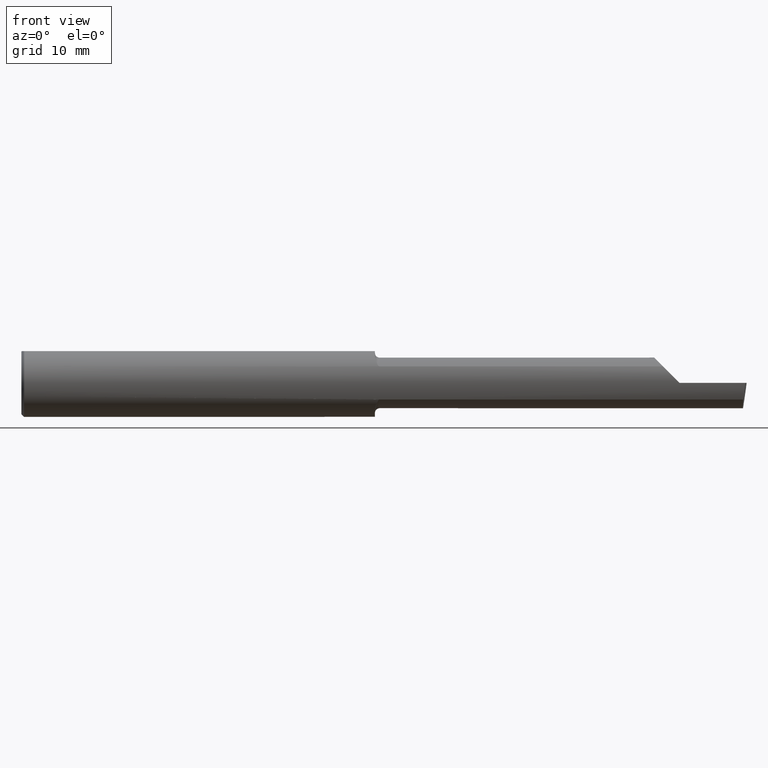
[diagram: clean part render]
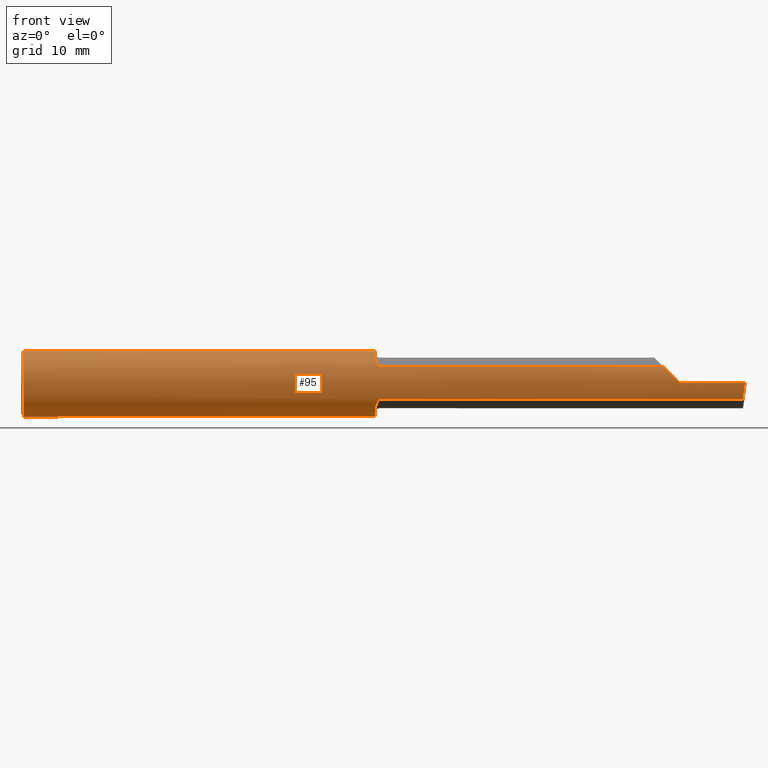
[diagram: same view with one face highlighted and labeled with its STEP entity id]
A machine part, front view. The second image highlights one B-rep face of the part: STEP entity #95.
In plain terms, the highlighted cylindrical surface (edge-blend (fillet) strip) has radius 4.7587 mm, axis along (-1, -0, -0).
Its self-contained STEP definition (entity closure, byte-faithful):
#14 = LINE ( 'NONE', #566, #332 ) ;
#16 = CARTESIAN_POINT ( 'NONE',  ( 1.565719721143680372E-32, -0.1873499999999999610, 1.790477306702064235E-16 ) ) ;
#18 = CIRCLE ( 'NONE', #256, 0.1873499999999999888 ) ;
#22 = CARTESIAN_POINT ( 'NONE',  ( 0.01499999999999999424, 0.000000000000000000, 0.000000000000000000 ) ) ;
#24 = ORIENTED_EDGE ( 'NONE', *, *, #160, .T. ) ;
#25 = CARTESIAN_POINT ( 'NONE',  ( 1.967975941902152970, -0.1612443294219081946, -0.09540922431498190248 ) ) ;
#27 = B_SPLINE_CURVE_WITH_KNOTS ( 'NONE', 3,
 ( #98, #536, #37, #139, #340, #94, #381, #473, #633, #250, #293, #29, #148, #576 ),
 .UNSPECIFIED., .F., .F.,
 ( 4, 2, 2, 2, 2, 2, 4 ),
 ( 0.0002471551878304244871, 0.0008987327522055639636, 0.001550310316580703549, 0.002201887880955843025, 0.002527676663143411679, 0.002690571054237196440, 0.002853465445330980767 ),
 .UNSPECIFIED. ) ;
#28 = EDGE_CURVE ( 'NONE', #187, #599, #228, .T. ) ;
#29 = CARTESIAN_POINT ( 'NONE',  ( 1.970903862568969656, -0.1628809688430622182, 0.09258733509388469840 ) ) ;
#31 = CARTESIAN_POINT ( 'NONE',  ( 0.01499999999999999424, 0.000000000000000000, -0.1873499999999999888 ) ) ;
#33 = LINE ( 'NONE', #88, #278 ) ;
#36 = EDGE_CURVE ( 'NONE', #453, #77, #274, .T. ) ;
#37 = CARTESIAN_POINT ( 'NONE',  ( 1.950383728133729955, -0.1114837668894153588, 0.1508119329971095157 ) ) ;
#38 = CARTESIAN_POINT ( 'NONE',  ( 3.984117089522338340, -0.1792580844883770730, -0.06324101202936152633 ) ) ;
#51 = AXIS2_PLACEMENT_3D ( 'NONE', #220, #615, #408 ) ;
#62 = DIRECTION ( 'NONE',  ( 0.000000000000000000, 1.000000000000000000, 0.000000000000000000 ) ) ;
#63 =( BOUNDED_CURVE ( )  B_SPLINE_CURVE ( 3, ( #99, #38, #632, #203 ),
 .UNSPECIFIED., .F., .T. ) 
 B_SPLINE_CURVE_WITH_KNOTS ( ( 4, 4 ),
 ( 0.8516985021657640376, 1.360746882515199152 ),
 .UNSPECIFIED. ) 
 CURVE ( )  GEOMETRIC_REPRESENTATION_ITEM ( )  RATIONAL_B_SPLINE_CURVE ( ( 1.000000000000000000, 0.9785221379938656705, 0.9785221379938656705, 1.000000000000000000 ) ) 
 REPRESENTATION_ITEM ( '' )  );
#69 = DIRECTION ( 'NONE',  ( 0.000000000000000000, 0.000000000000000000, 1.000000000000000000 ) ) ;
#77 = VERTEX_POINT ( 'NONE', #456 ) ;
#82 = EDGE_CURVE ( 'NONE', #187, #125, #215, .T. ) ;
#85 = DIRECTION ( 'NONE',  ( 1.000000000000000000, 0.000000000000000000, 0.000000000000000000 ) ) ;
#87 = CARTESIAN_POINT ( 'NONE',  ( 2.817500000000000338, -0.1635956445993029806, -0.09130436773856190347 ) ) ;
#88 = CARTESIAN_POINT ( 'NONE',  ( 0.000000000000000000, -0.06597272163553657975, 0.1753499999999999781 ) ) ;
#90 = CARTESIAN_POINT ( 'NONE',  ( 1.956145841430604770, -0.1426194794824340584, -0.1217813759115466132 ) ) ;
#91 = AXIS2_PLACEMENT_3D ( 'NONE', #638, #429, #634 ) ;
#94 = CARTESIAN_POINT ( 'NONE',  ( 1.956142321956750418, -0.1426151417460931881, 0.1217894822571231050 ) ) ;
#95 = ADVANCED_FACE ( 'NONE', ( #464 ), #183, .T. ) ;
#97 = CARTESIAN_POINT ( 'NONE',  ( 3.629999999999999893, -0.1873499999999999888, -1.383850883036508279E-16 ) ) ;
#98 = CARTESIAN_POINT ( 'NONE',  ( 1.950000000000000178, -0.09715400696864148755, 0.1601908905959922580 ) ) ;
#99 = CARTESIAN_POINT ( 'NONE',  ( 3.981080296960509024, -0.1635956445993029806, -0.09130436773856190347 ) ) ;
#124 = DIRECTION ( 'NONE',  ( -1.000000000000000000, -0.000000000000000000, -0.000000000000000000 ) ) ;
#125 = VERTEX_POINT ( 'NONE', #31 ) ;
#134 = EDGE_CURVE ( 'NONE', #339, #450, #33, .T. ) ;
#138 = CARTESIAN_POINT ( 'NONE',  ( 1.951903396790308109, -0.1248165254919064160, -0.1399798634953944299 ) ) ;
#139 = CARTESIAN_POINT ( 'NONE',  ( 1.951891754936545098, -0.1247344934163569508, 0.1400506178720500317 ) ) ;
#144 = VECTOR ( 'NONE', #468, 39.37007874015748143 ) ;
#148 = CARTESIAN_POINT ( 'NONE',  ( 1.972800914500665304, -0.1635956445997551467, 0.09130436773775216230 ) ) ;
#152 = CARTESIAN_POINT ( 'NONE',  ( 0.01499999999999999424, 0.06597272163553663527, 0.1753499999999999781 ) ) ;
#153 = AXIS2_PLACEMENT_3D ( 'NONE', #22, #124, #613 ) ;
#155 = ORIENTED_EDGE ( 'NONE', *, *, #36, .T. ) ;
#160 = EDGE_CURVE ( 'NONE', #218, #453, #63, .T. ) ;
#170 = CARTESIAN_POINT ( 'NONE',  ( 1.963743174082349885, -0.1572750258711010096, -0.1018777902325210261 ) ) ;
#172 = EDGE_CURVE ( 'NONE', #77, #418, #248, .T. ) ;
#178 = ORIENTED_EDGE ( 'NONE', *, *, #465, .F. ) ;
#183 = CYLINDRICAL_SURFACE ( 'NONE', #559, 0.1873499999999999888 ) ;
#184 = ORIENTED_EDGE ( 'NONE', *, *, #28, .T. ) ;
#187 = VERTEX_POINT ( 'NONE', #152 ) ;
#195 = CARTESIAN_POINT ( 'NONE',  ( 1.953041727949557993, -0.1311116946065054856, -0.1340922927843368473 ) ) ;
#199 = CARTESIAN_POINT ( 'NONE',  ( 1.950000000000000178, -0.09715400696864148755, -0.1601908905959922580 ) ) ;
#203 = CARTESIAN_POINT ( 'NONE',  ( 3.991672876940992154, -0.1873499999999999888, -1.700101953615524951E-16 ) ) ;
#211 = EDGE_LOOP ( 'NONE', ( #621, #24, #155, #378, #178, #500, #624, #272, #477, #617, #184, #546, #364 ) ) ;
#215 = CIRCLE ( 'NONE', #51, 0.1873499999999999888 ) ;
#218 = VERTEX_POINT ( 'NONE', #302 ) ;
#220 = CARTESIAN_POINT ( 'NONE',  ( 0.01499999999999999424, 0.000000000000000000, 0.000000000000000000 ) ) ;
#228 = LINE ( 'NONE', #521, #331 ) ;
#229 = EDGE_CURVE ( 'NONE', #339, #405, #611, .T. ) ;
#231 = CARTESIAN_POINT ( 'NONE',  ( 3.538695632261437130, -0.1635956445993027863, 0.09130436773856213939 ) ) ;
#233 = VERTEX_POINT ( 'NONE', #350 ) ;
#234 = CARTESIAN_POINT ( 'NONE',  ( 1.950000000000000178, -0.09715400696864148755, 0.1601908905959922580 ) ) ;
#238 = CARTESIAN_POINT ( 'NONE',  ( 1.950000000000000178, 0.06597272163553663527, 0.1753499999999999781 ) ) ;
#248 =( BOUNDED_CURVE ( )  B_SPLINE_CURVE ( 3, ( #97, #423, #384, #581 ),
 .UNSPECIFIED., .F., .T. ) 
 B_SPLINE_CURVE_WITH_KNOTS ( ( 4, 4 ),
 ( 4.712388980384689674, 5.221437360734126898 ),
 .UNSPECIFIED. ) 
 CURVE ( )  GEOMETRIC_REPRESENTATION_ITEM ( )  RATIONAL_B_SPLINE_CURVE ( ( 1.000000000000000000, 0.9785221379938655595, 0.9785221379938655595, 1.000000000000000000 ) ) 
 REPRESENTATION_ITEM ( '' )  );
#250 = CARTESIAN_POINT ( 'NONE',  ( 1.966855994529493667, -0.1603175578889969033, 0.09696363432848439934 ) ) ;
#256 = AXIS2_PLACEMENT_3D ( 'NONE', #320, #504, #62 ) ;
#272 = ORIENTED_EDGE ( 'NONE', *, *, #134, .T. ) ;
#274 = LINE ( 'NONE', #16, #144 ) ;
#277 = B_SPLINE_CURVE_WITH_KNOTS ( 'NONE', 3,
 ( #375, #508, #470, #25, #420, #170, #296, #424, #90, #195, #138, #526, #478, #199 ),
 .UNSPECIFIED., .F., .F.,
 ( 4, 2, 2, 2, 2, 2, 4 ),
 ( 1.968340875534775316E-07, 0.0001667114270246280842, 0.0003332260199617026984, 0.0006662552058358508968, 0.001332313577584142523, 0.001998371949332434366, 0.002664430321080726426 ),
 .UNSPECIFIED. ) ;
#278 = VECTOR ( 'NONE', #341, 39.37007874015748143 ) ;
#293 = CARTESIAN_POINT ( 'NONE',  ( 1.968001859868116821, -0.1612625562479371999, 0.09537826053888165401 ) ) ;
#296 = CARTESIAN_POINT ( 'NONE',  ( 1.962184598714912909, -0.1550322129197698462, -0.1052705638704080349 ) ) ;
#302 = CARTESIAN_POINT ( 'NONE',  ( 3.981080296960509024, -0.1635956445993029806, -0.09130436773856190347 ) ) ;
#320 = CARTESIAN_POINT ( 'NONE',  ( 1.950000000000000178, 0.000000000000000000, 0.000000000000000000 ) ) ;
#331 = VECTOR ( 'NONE', #85, 39.37007874015748143 ) ;
#332 = VECTOR ( 'NONE', #622, 39.37007874015748143 ) ;
#337 = LINE ( 'NONE', #87, #495 ) ;
#339 = VERTEX_POINT ( 'NONE', #543 ) ;
#340 = CARTESIAN_POINT ( 'NONE',  ( 1.953025912205683667, -0.1310442973014116219, 0.1341609063345041430 ) ) ;
#341 = DIRECTION ( 'NONE',  ( -1.000000000000000000, -0.000000000000000000, -0.000000000000000000 ) ) ;
#350 = CARTESIAN_POINT ( 'NONE',  ( 1.975000000000000089, -0.1635956445993032582, -0.09130436773856132060 ) ) ;
#352 = CIRCLE ( 'NONE', #153, 0.1873499999999999888 ) ;
#364 = ORIENTED_EDGE ( 'NONE', *, *, #498, .F. ) ;
#369 = VERTEX_POINT ( 'NONE', #449 ) ;
#370 = CARTESIAN_POINT ( 'NONE',  ( 1.950000000000000178, -0.09715400696864148755, -0.1601908905959922580 ) ) ;
#375 = CARTESIAN_POINT ( 'NONE',  ( 1.975000000000000089, -0.1635956445993032582, -0.09130436773856132060 ) ) ;
#378 = ORIENTED_EDGE ( 'NONE', *, *, #172, .T. ) ;
#381 = CARTESIAN_POINT ( 'NONE',  ( 1.958072954143140310, -0.1479074971576199993, 0.1152872342625230334 ) ) ;
#384 = CARTESIAN_POINT ( 'NONE',  ( 3.566758987970637840, -0.1792580844883770452, 0.06324101202936160959 ) ) ;
#392 = EDGE_CURVE ( 'NONE', #402, #599, #18, .T. ) ;
#400 = EDGE_CURVE ( 'NONE', #125, #450, #352, .T. ) ;
#402 = VERTEX_POINT ( 'NONE', #370 ) ;
#405 = VERTEX_POINT ( 'NONE', #234 ) ;
#408 = DIRECTION ( 'NONE',  ( 0.000000000000000000, 0.000000000000000000, 1.000000000000000000 ) ) ;
#418 = VERTEX_POINT ( 'NONE', #231 ) ;
#420 = CARTESIAN_POINT ( 'NONE',  ( 1.966814909379088760, -0.1602818635245159828, -0.09702252612905266915 ) ) ;
#423 = CARTESIAN_POINT ( 'NONE',  ( 3.597861799102314073, -0.1873499999999999888, 0.03213820089768522348 ) ) ;
#424 = CARTESIAN_POINT ( 'NONE',  ( 1.958068207442171582, -0.1478915270140211680, -0.1153063024254922658 ) ) ;
#429 = DIRECTION ( 'NONE',  ( 1.000000000000000000, 4.268512490100411279E-18, 0.000000000000000000 ) ) ;
#449 = CARTESIAN_POINT ( 'NONE',  ( 1.975000000000000089, -0.1635956445993030084, 0.09130436773856159816 ) ) ;
#450 = VERTEX_POINT ( 'NONE', #510 ) ;
#453 = VERTEX_POINT ( 'NONE', #520 ) ;
#456 = CARTESIAN_POINT ( 'NONE',  ( 3.629999999999999893, -0.1873499999999999888, -1.383850883036508279E-16 ) ) ;
#464 = FACE_OUTER_BOUND ( 'NONE', #211, .T. ) ;
#465 = EDGE_CURVE ( 'NONE', #369, #418, #14, .T. ) ;
#468 = DIRECTION ( 'NONE',  ( -1.000000000000000000, -0.000000000000000000, -0.000000000000000000 ) ) ;
#470 = CARTESIAN_POINT ( 'NONE',  ( 1.970881499230870082, -0.1628722075910992440, -0.09260290410947838446 ) ) ;
#471 = DIRECTION ( 'NONE',  ( -1.000000000000000000, -0.000000000000000000, -0.000000000000000000 ) ) ;
#473 = CARTESIAN_POINT ( 'NONE',  ( 1.962204638458736827, -0.1550630761760524445, 0.1052254855377560971 ) ) ;
#477 = ORIENTED_EDGE ( 'NONE', *, *, #400, .F. ) ;
#478 = CARTESIAN_POINT ( 'NONE',  ( 1.949999999999999512, -0.1045082199249683375, -0.1557306416133591442 ) ) ;
#495 = VECTOR ( 'NONE', #523, 39.37007874015748143 ) ;
#498 = EDGE_CURVE ( 'NONE', #233, #402, #277, .T. ) ;
#500 = ORIENTED_EDGE ( 'NONE', *, *, #565, .F. ) ;
#504 = DIRECTION ( 'NONE',  ( 1.000000000000000000, 4.268512490100411279E-18, 0.000000000000000000 ) ) ;
#508 = CARTESIAN_POINT ( 'NONE',  ( 1.972779935319434408, -0.1635956445993032027, -0.09130436773856152877 ) ) ;
#510 = CARTESIAN_POINT ( 'NONE',  ( 0.01499999999999997863, -0.06597272163553657975, 0.1753499999999999781 ) ) ;
#520 = CARTESIAN_POINT ( 'NONE',  ( 3.991672876940992154, -0.1873499999999999888, -1.700101953615524951E-16 ) ) ;
#521 = CARTESIAN_POINT ( 'NONE',  ( 0.000000000000000000, 0.06597272163553663527, 0.1753499999999999781 ) ) ;
#523 = DIRECTION ( 'NONE',  ( -1.000000000000000000, -4.268512490100411279E-18, -0.000000000000000000 ) ) ;
#526 = CARTESIAN_POINT ( 'NONE',  ( 1.950384441902395016, -0.1115101367984841774, -0.1507946173152221458 ) ) ;
#536 = CARTESIAN_POINT ( 'NONE',  ( 1.949999999999999734, -0.1045012500212955942, 0.1557348687830033274 ) ) ;
#543 = CARTESIAN_POINT ( 'NONE',  ( 1.950000000000000178, -0.06597272163553659363, 0.1753499999999999781 ) ) ;
#546 = ORIENTED_EDGE ( 'NONE', *, *, #392, .F. ) ;
#559 = AXIS2_PLACEMENT_3D ( 'NONE', #623, #471, #69 ) ;
#565 = EDGE_CURVE ( 'NONE', #405, #369, #27, .T. ) ;
#566 = CARTESIAN_POINT ( 'NONE',  ( 2.817500000000000338, -0.1635956445993029806, 0.09130436773856190347 ) ) ;
#576 = CARTESIAN_POINT ( 'NONE',  ( 1.975000000000000089, -0.1635956445993030084, 0.09130436773856159816 ) ) ;
#581 = CARTESIAN_POINT ( 'NONE',  ( 3.538695632261437130, -0.1635956445993027863, 0.09130436773856213939 ) ) ;
#588 = EDGE_CURVE ( 'NONE', #218, #233, #337, .T. ) ;
#599 = VERTEX_POINT ( 'NONE', #238 ) ;
#611 = CIRCLE ( 'NONE', #91, 0.1873499999999999888 ) ;
#613 = DIRECTION ( 'NONE',  ( 0.000000000000000000, 0.000000000000000000, 1.000000000000000000 ) ) ;
#615 = DIRECTION ( 'NONE',  ( -1.000000000000000000, -0.000000000000000000, -0.000000000000000000 ) ) ;
#617 = ORIENTED_EDGE ( 'NONE', *, *, #82, .F. ) ;
#621 = ORIENTED_EDGE ( 'NONE', *, *, #588, .F. ) ;
#622 = DIRECTION ( 'NONE',  ( 1.000000000000000000, 4.268512490100411279E-18, 0.000000000000000000 ) ) ;
#623 = CARTESIAN_POINT ( 'NONE',  ( 0.000000000000000000, 0.000000000000000000, 0.000000000000000000 ) ) ;
#624 = ORIENTED_EDGE ( 'NONE', *, *, #229, .F. ) ;
#632 = CARTESIAN_POINT ( 'NONE',  ( 3.987725449370724373, -0.1873499999999999888, -0.03213820089768524429 ) ) ;
#633 = CARTESIAN_POINT ( 'NONE',  ( 1.963764108097883376, -0.1573043405450772481, 0.1018329020719634659 ) ) ;
#634 = DIRECTION ( 'NONE',  ( 0.000000000000000000, 1.000000000000000000, 0.000000000000000000 ) ) ;
#638 = CARTESIAN_POINT ( 'NONE',  ( 1.950000000000000178, 0.000000000000000000, 0.000000000000000000 ) ) ;